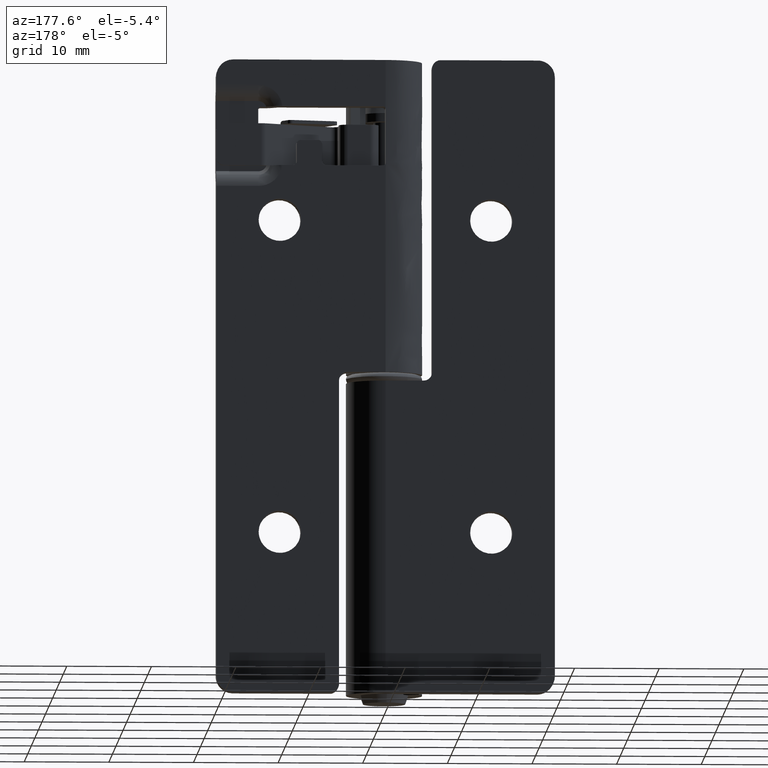
[diagram: clean part render]
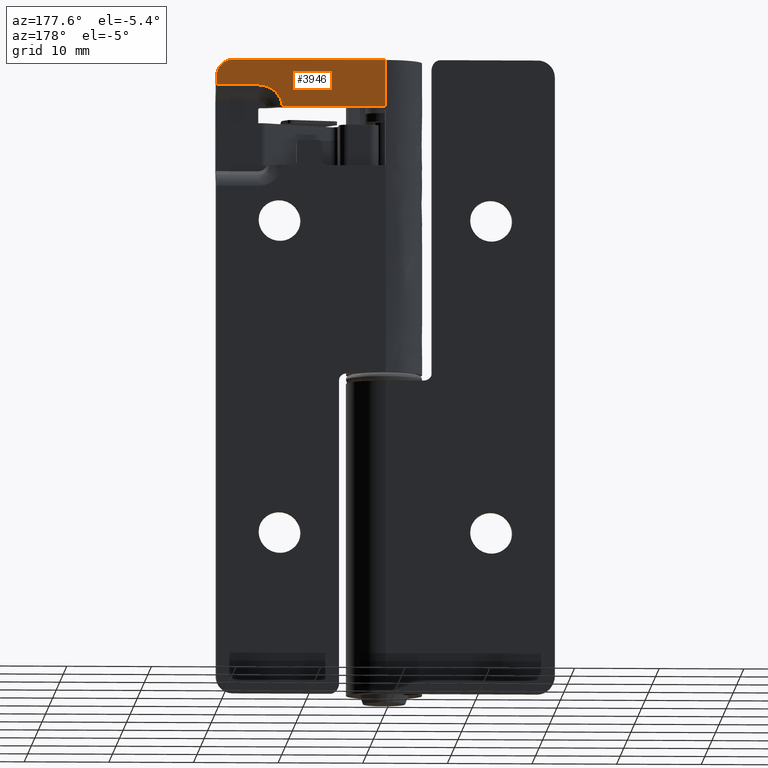
[diagram: same view with one face highlighted and labeled with its STEP entity id]
A machine part, auxiliary view. The second image highlights one B-rep face of the part: STEP entity #3946.
In plain terms, the highlighted face is a freeform B-spline surface patch.
Its self-contained STEP definition (entity closure, byte-faithful):
#3391=CARTESIAN_POINT('',(17.999999999984951,4.500000000005639,75.0));
#3392=VERTEX_POINT('',#3391);
#3398=CARTESIAN_POINT('',(-1.644524E-011,4.499999999999945,75.0));
#3399=VERTEX_POINT('',#3398);
#3400=CARTESIAN_POINT('',(17.999999999984951,4.500000000005639,75.0));
#3401=CARTESIAN_POINT('',(-1.644524E-011,4.499999999999945,75.0));
#3402=QUASI_UNIFORM_CURVE('',1,(#3400,#3401),.UNSPECIFIED.,.F.,.U.);
#3403=EDGE_CURVE('',#3392,#3399,#3402,.T.);
#3602=CARTESIAN_POINT('',(0.0,4.500000000006279,69.200000000000003));
#3603=VERTEX_POINT('',#3602);
#3604=CARTESIAN_POINT('',(-1.644524E-011,4.499999999999945,75.0));
#3605=CARTESIAN_POINT('',(0.0,4.500000000006279,69.200000000000003));
#3606=QUASI_UNIFORM_CURVE('',1,(#3604,#3605),.UNSPECIFIED.,.F.,.U.);
#3607=EDGE_CURVE('',#3399,#3603,#3606,.T.);
#3873=CARTESIAN_POINT('',(-0.998999961252634,4.499999999999564,68.910290011241543));
#3874=CARTESIAN_POINT('',(20.999000497662941,4.500000000006599,68.910290011241528));
#3875=CARTESIAN_POINT('',(-0.998999961252634,4.499999999999564,75.289710144326605));
#3876=CARTESIAN_POINT('',(20.999000497662941,4.500000000006599,75.289710144326591));
#3877=B_SPLINE_SURFACE_WITH_KNOTS('',1,1,((#3873,#3875),(#3874,#3876)),.UNSPECIFIED.,.F.,.F.,.U.,(2,2),(2,2),(0.0,21.998000458915570),(0.0,6.379420133085063),.UNSPECIFIED.);
#3878=CARTESIAN_POINT('',(19.999999999984951,4.500000000000000,71.995093791412799));
#3879=VERTEX_POINT('',#3878);
#3880=CARTESIAN_POINT('',(14.999999999886819,4.500000000004680,71.995093791412799));
#3881=VERTEX_POINT('',#3880);
#3882=CARTESIAN_POINT('',(19.999999999984951,4.500000000000000,71.995093791412799));
#3883=CARTESIAN_POINT('',(14.999999999886819,4.500000000004680,71.995093791412799));
#3884=QUASI_UNIFORM_CURVE('',1,(#3882,#3883),.UNSPECIFIED.,.F.,.U.);
#3885=EDGE_CURVE('',#3879,#3881,#3884,.T.);
#3886=ORIENTED_EDGE('',*,*,#3885,.T.);
#3887=CARTESIAN_POINT('',(12.191283408829261,4.500000000006279,69.500000000000000));
#3888=VERTEX_POINT('',#3887);
#3889=CARTESIAN_POINT('',(14.999999999886819,4.500000000004680,71.995093791412756));
#3890=CARTESIAN_POINT('',(12.487396563541411,4.500000000003877,71.995093791411691));
#3891=CARTESIAN_POINT('',(12.191283408829261,4.500000000003782,69.500000000000000));
#3899=(BOUNDED_CURVE()B_SPLINE_CURVE(2,(#3889,#3890,#3891),.UNSPECIFIED.,.F.,.U.)CURVE()GEOMETRIC_REPRESENTATION_ITEM()QUASI_UNIFORM_CURVE()RATIONAL_B_SPLINE_CURVE((1.0,0.747613245668574,1.0))REPRESENTATION_ITEM(''));
#3900=EDGE_CURVE('',#3881,#3888,#3899,.T.);
#3901=ORIENTED_EDGE('',*,*,#3900,.T.);
#3902=CARTESIAN_POINT('',(0.300000000000011,4.500000000006279,69.500000000000000));
#3903=VERTEX_POINT('',#3902);
#3904=CARTESIAN_POINT('',(0.300000000000011,4.500000000006279,69.500000000000000));
#3905=CARTESIAN_POINT('',(12.191283408829261,4.500000000006279,69.500000000000000));
#3906=QUASI_UNIFORM_CURVE('',1,(#3904,#3905),.UNSPECIFIED.,.F.,.U.);
#3907=EDGE_CURVE('',#3903,#3888,#3906,.T.);
#3908=ORIENTED_EDGE('',*,*,#3907,.F.);
#3909=CARTESIAN_POINT('',(0.300000000000011,4.500000000006279,69.499999999999986));
#3910=CARTESIAN_POINT('',(1.149254E-014,4.500000000006279,69.499999999999986));
#3911=CARTESIAN_POINT('',(1.149254E-014,4.500000000006279,69.200000000000003));
#3919=(BOUNDED_CURVE()B_SPLINE_CURVE(2,(#3909,#3910,#3911),.UNSPECIFIED.,.F.,.U.)CURVE()GEOMETRIC_REPRESENTATION_ITEM()QUASI_UNIFORM_CURVE()RATIONAL_B_SPLINE_CURVE((1.0,0.707106781186547,1.0))REPRESENTATION_ITEM(''));
#3920=EDGE_CURVE('',#3903,#3603,#3919,.T.);
#3921=ORIENTED_EDGE('',*,*,#3920,.T.);
#3922=ORIENTED_EDGE('',*,*,#3607,.F.);
#3923=ORIENTED_EDGE('',*,*,#3403,.F.);
#3924=CARTESIAN_POINT('',(19.999999999984951,4.500000000000000,73.0));
#3925=VERTEX_POINT('',#3924);
#3926=CARTESIAN_POINT('',(17.999999999984951,4.500000000005639,75.0));
#3927=CARTESIAN_POINT('',(19.999999999984951,4.500000000006279,75.000000000000014));
#3928=CARTESIAN_POINT('',(19.999999999984951,4.500000000006279,73.0));
#3936=(BOUNDED_CURVE()B_SPLINE_CURVE(2,(#3926,#3927,#3928),.UNSPECIFIED.,.F.,.U.)CURVE()GEOMETRIC_REPRESENTATION_ITEM()QUASI_UNIFORM_CURVE()RATIONAL_B_SPLINE_CURVE((1.0,0.707106781186548,1.0))REPRESENTATION_ITEM(''));
#3937=EDGE_CURVE('',#3392,#3925,#3936,.T.);
#3938=ORIENTED_EDGE('',*,*,#3937,.T.);
#3939=CARTESIAN_POINT('',(19.999999999984951,4.500000000000000,73.0));
#3940=CARTESIAN_POINT('',(19.999999999984951,4.500000000000000,71.995093791412799));
#3941=QUASI_UNIFORM_CURVE('',1,(#3939,#3940),.UNSPECIFIED.,.F.,.U.);
#3942=EDGE_CURVE('',#3925,#3879,#3941,.T.);
#3943=ORIENTED_EDGE('',*,*,#3942,.T.);
#3944=EDGE_LOOP('',(#3886,#3901,#3908,#3921,#3922,#3923,#3938,#3943));
#3945=FACE_OUTER_BOUND('',#3944,.T.);
#3946=ADVANCED_FACE('',(#3945),#3877,.F.);